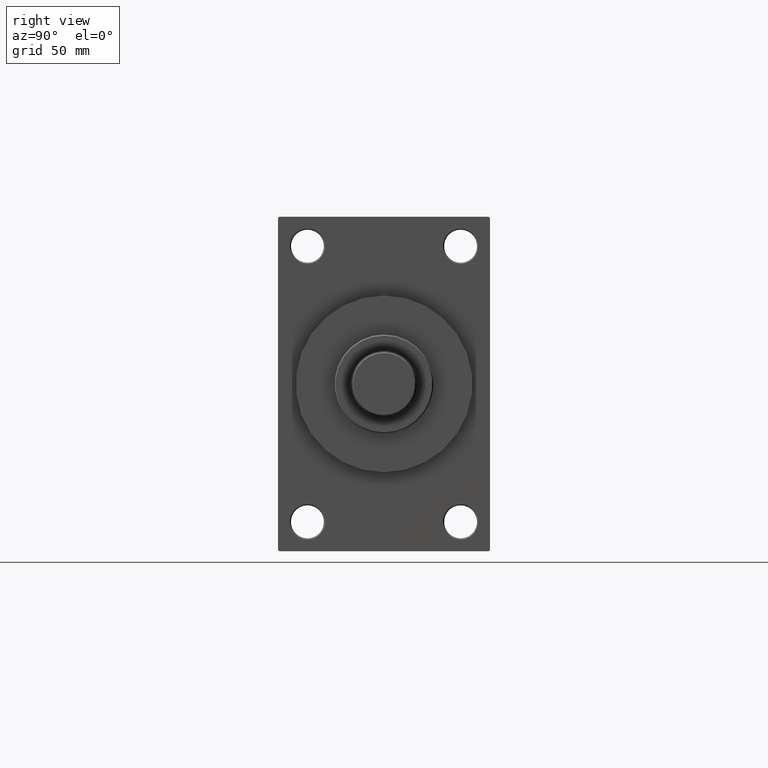
[diagram: clean part render]
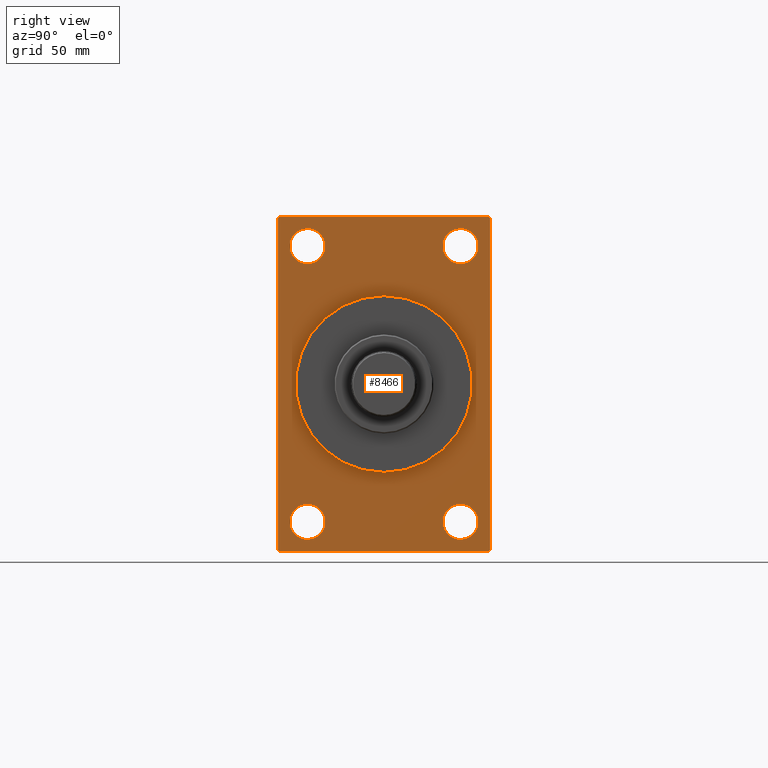
[diagram: same view with one face highlighted and labeled with its STEP entity id]
A machine part, right view. The second image highlights one B-rep face of the part: STEP entity #8466.
In plain terms, the highlighted planar face has unit normal (-1, 0, 0).
Its self-contained STEP definition (entity closure, byte-faithful):
#698 = DIRECTION ( 'NONE',  ( 0.000000000000000000, 0.000000000000000000, 1.000000000000000000 ) ) ;
#721 = CARTESIAN_POINT ( 'NONE',  ( 169.9999999999999716, 44.50000000000000000, 71.00000000000000000 ) ) ;
#724 = EDGE_CURVE ( 'NONE', #23337, #26049, #18722, .T. ) ;
#1033 = DIRECTION ( 'NONE',  ( 0.000000000000000000, 0.000000000000000000, -1.000000000000000000 ) ) ;
#1061 = EDGE_CURVE ( 'NONE', #9287, #33714, #28244, .T. ) ;
#1520 = VERTEX_POINT ( 'NONE', #8630 ) ;
#1823 = DIRECTION ( 'NONE',  ( 0.000000000000000000, 0.000000000000000000, 1.000000000000000000 ) ) ;
#1904 = FACE_OUTER_BOUND ( 'NONE', #9226, .T. ) ;
#2166 = ORIENTED_EDGE ( 'NONE', *, *, #1061, .T. ) ;
#2529 = ORIENTED_EDGE ( 'NONE', *, *, #30286, .F. ) ;
#2673 = CARTESIAN_POINT ( 'NONE',  ( 169.9999999999999716, -45.00000000000000000, 70.49999999999997158 ) ) ;
#2884 = DIRECTION ( 'NONE',  ( 1.000000000000000000, 0.000000000000000000, 0.000000000000000000 ) ) ;
#3678 = EDGE_CURVE ( 'NONE', #29663, #18079, #32080, .T. ) ;
#4198 = ORIENTED_EDGE ( 'NONE', *, *, #3678, .F. ) ;
#4461 = ORIENTED_EDGE ( 'NONE', *, *, #26153, .T. ) ;
#5054 = FACE_BOUND ( 'NONE', #37227, .T. ) ;
#5486 = AXIS2_PLACEMENT_3D ( 'NONE', #33368, #10960, #33132 ) ;
#5641 = ORIENTED_EDGE ( 'NONE', *, *, #18624, .T. ) ;
#5777 = VERTEX_POINT ( 'NONE', #20617 ) ;
#5991 = AXIS2_PLACEMENT_3D ( 'NONE', #10368, #2884, #28681 ) ;
#6076 = CARTESIAN_POINT ( 'NONE',  ( 169.9999999999999716, 32.49999999999998579, 51.00000000000001421 ) ) ;
#6218 = CARTESIAN_POINT ( 'NONE',  ( 169.9999999999999716, -32.50000000000001421, -58.49999999999998579 ) ) ;
#6456 = DIRECTION ( 'NONE',  ( 0.000000000000000000, 0.000000000000000000, 1.000000000000000000 ) ) ;
#6475 = CIRCLE ( 'NONE', #20376, 7.500000000000007105 ) ;
#6498 = ORIENTED_EDGE ( 'NONE', *, *, #21229, .T. ) ;
#7703 = CARTESIAN_POINT ( 'NONE',  ( 169.9999999999999716, 0.000000000000000000, 0.000000000000000000 ) ) ;
#7939 = CIRCLE ( 'NONE', #14869, 7.499999999999992895 ) ;
#8384 = CARTESIAN_POINT ( 'NONE',  ( 169.9999999999999716, 32.49999999999998579, 66.00000000000000000 ) ) ;
#8466 = ADVANCED_FACE ( 'NONE', ( #31071, #9371, #5054, #24087, #12292, #1904 ), #31544, .F. ) ;
#8630 = CARTESIAN_POINT ( 'NONE',  ( 169.9999999999999716, -32.50000000000001421, -65.99999999999997158 ) ) ;
#8816 = VERTEX_POINT ( 'NONE', #8384 ) ;
#9226 = EDGE_LOOP ( 'NONE', ( #22652, #40382, #4198, #29262, #41292, #17632, #6498, #2166 ) ) ;
#9287 = VERTEX_POINT ( 'NONE', #32386 ) ;
#9371 = FACE_BOUND ( 'NONE', #16220, .T. ) ;
#9567 = ORIENTED_EDGE ( 'NONE', *, *, #44013, .T. ) ;
#10368 = CARTESIAN_POINT ( 'NONE',  ( 169.9999999999999716, 0.000000000000000000, 0.000000000000000000 ) ) ;
#10960 = DIRECTION ( 'NONE',  ( -1.000000000000000000, -0.000000000000000000, -0.000000000000000000 ) ) ;
#11166 = CARTESIAN_POINT ( 'NONE',  ( 169.9999999999999716, 45.00000000000000000, 71.00000000000000000 ) ) ;
#11249 = CARTESIAN_POINT ( 'NONE',  ( 169.9999999999999716, 4.592425496802575156E-15, -37.50000000000000711 ) ) ;
#11980 = DIRECTION ( 'NONE',  ( -1.000000000000000000, -0.000000000000000000, -0.000000000000000000 ) ) ;
#12292 = FACE_BOUND ( 'NONE', #13541, .T. ) ;
#12658 = VECTOR ( 'NONE', #38460, 1000.000000000000000 ) ;
#13507 = CARTESIAN_POINT ( 'NONE',  ( 169.9999999999999716, -32.50000000000001421, 58.50000000000001421 ) ) ;
#13541 = EDGE_LOOP ( 'NONE', ( #2529, #29137 ) ) ;
#13862 = VERTEX_POINT ( 'NONE', #43941 ) ;
#14226 = DIRECTION ( 'NONE',  ( 0.000000000000000000, 0.000000000000000000, 1.000000000000000000 ) ) ;
#14477 = DIRECTION ( 'NONE',  ( 0.000000000000000000, 0.000000000000000000, -1.000000000000000000 ) ) ;
#14832 = AXIS2_PLACEMENT_3D ( 'NONE', #19469, #11980, #1823 ) ;
#14869 = AXIS2_PLACEMENT_3D ( 'NONE', #25074, #39769, #15440 ) ;
#14948 = CARTESIAN_POINT ( 'NONE',  ( 169.9999999999999716, 32.49999999999998579, -58.49999999999998579 ) ) ;
#15440 = DIRECTION ( 'NONE',  ( 0.000000000000000000, 0.000000000000000000, 1.000000000000000000 ) ) ;
#15464 = EDGE_CURVE ( 'NONE', #1520, #5777, #44053, .T. ) ;
#15898 = ORIENTED_EDGE ( 'NONE', *, *, #45841, .T. ) ;
#16220 = EDGE_LOOP ( 'NONE', ( #37989, #4461 ) ) ;
#17400 = CARTESIAN_POINT ( 'NONE',  ( 169.9999999999999716, 45.00000000000000000, -71.00000000000000000 ) ) ;
#17405 = DIRECTION ( 'NONE',  ( -0.000000000000000000, -0.7071067811865474617, -0.7071067811865474617 ) ) ;
#17617 = VECTOR ( 'NONE', #28239, 1000.000000000000000 ) ;
#17632 = ORIENTED_EDGE ( 'NONE', *, *, #724, .T. ) ;
#18079 = VERTEX_POINT ( 'NONE', #45377 ) ;
#18624 = EDGE_CURVE ( 'NONE', #8816, #43492, #30311, .T. ) ;
#18722 = LINE ( 'NONE', #33636, #26030 ) ;
#19310 = CARTESIAN_POINT ( 'NONE',  ( 169.9999999999999716, -32.50000000000001421, -58.49999999999998579 ) ) ;
#19454 = VERTEX_POINT ( 'NONE', #38163 ) ;
#19469 = CARTESIAN_POINT ( 'NONE',  ( 169.9999999999999716, 32.49999999999998579, -58.49999999999998579 ) ) ;
#19668 = ORIENTED_EDGE ( 'NONE', *, *, #38671, .T. ) ;
#19775 = DIRECTION ( 'NONE',  ( -1.000000000000000000, 0.000000000000000000, -0.000000000000000000 ) ) ;
#19901 = VECTOR ( 'NONE', #1033, 1000.000000000000000 ) ;
#20144 = CARTESIAN_POINT ( 'NONE',  ( 169.9999999999999716, -32.50000000000001421, 51.00000000000001421 ) ) ;
#20260 = EDGE_LOOP ( 'NONE', ( #15898, #5641 ) ) ;
#20376 = AXIS2_PLACEMENT_3D ( 'NONE', #14948, #22412, #698 ) ;
#20617 = CARTESIAN_POINT ( 'NONE',  ( 169.9999999999999716, -32.50000000000001421, -50.99999999999997868 ) ) ;
#20872 = EDGE_CURVE ( 'NONE', #21257, #30416, #6475, .T. ) ;
#21108 = CARTESIAN_POINT ( 'NONE',  ( 169.9999999999999716, -32.50000000000001421, 66.00000000000001421 ) ) ;
#21159 = VECTOR ( 'NONE', #45361, 1000.000000000000114 ) ;
#21229 = EDGE_CURVE ( 'NONE', #26049, #9287, #23760, .T. ) ;
#21257 = VERTEX_POINT ( 'NONE', #31213 ) ;
#21421 = CARTESIAN_POINT ( 'NONE',  ( 169.9999999999999716, 32.49999999999998579, 58.50000000000000711 ) ) ;
#22412 = DIRECTION ( 'NONE',  ( -1.000000000000000000, -0.000000000000000000, -0.000000000000000000 ) ) ;
#22652 = ORIENTED_EDGE ( 'NONE', *, *, #42357, .T. ) ;
#23207 = CIRCLE ( 'NONE', #5486, 7.500000000000000000 ) ;
#23337 = VERTEX_POINT ( 'NONE', #27051 ) ;
#23659 = LINE ( 'NONE', #41511, #21159 ) ;
#23760 = LINE ( 'NONE', #26906, #12658 ) ;
#24087 = FACE_BOUND ( 'NONE', #20260, .T. ) ;
#24827 = EDGE_CURVE ( 'NONE', #29663, #13862, #23659, .T. ) ;
#25074 = CARTESIAN_POINT ( 'NONE',  ( 169.9999999999999716, 32.49999999999998579, 58.50000000000000711 ) ) ;
#25276 = DIRECTION ( 'NONE',  ( -1.000000000000000000, -0.000000000000000000, -0.000000000000000000 ) ) ;
#25282 = DIRECTION ( 'NONE',  ( -1.000000000000000000, -0.000000000000000000, -0.000000000000000000 ) ) ;
#25945 = ORIENTED_EDGE ( 'NONE', *, *, #45408, .T. ) ;
#25968 = LINE ( 'NONE', #37301, #46263 ) ;
#26030 = VECTOR ( 'NONE', #29773, 1000.000000000000114 ) ;
#26049 = VERTEX_POINT ( 'NONE', #721 ) ;
#26153 = EDGE_CURVE ( 'NONE', #5777, #1520, #34468, .T. ) ;
#26906 = CARTESIAN_POINT ( 'NONE',  ( 169.9999999999999716, 45.00000000000000000, 71.00000000000000000 ) ) ;
#27051 = CARTESIAN_POINT ( 'NONE',  ( 169.9999999999999716, 45.00000000000000000, 70.50000000000000000 ) ) ;
#27088 = EDGE_CURVE ( 'NONE', #23337, #13862, #41288, .T. ) ;
#27238 = CARTESIAN_POINT ( 'NONE',  ( 169.9999999999999716, 0.000000000000000000, 0.000000000000000000 ) ) ;
#27548 = CARTESIAN_POINT ( 'NONE',  ( 169.9999999999999716, 44.49999999999997158, -71.00000000000000000 ) ) ;
#27650 = ORIENTED_EDGE ( 'NONE', *, *, #20872, .T. ) ;
#28239 = DIRECTION ( 'NONE',  ( 0.000000000000000000, -1.000000000000000000, 0.000000000000000000 ) ) ;
#28244 = LINE ( 'NONE', #43902, #39087 ) ;
#28303 = CARTESIAN_POINT ( 'NONE',  ( 169.9999999999999716, -45.00000000000000000, 71.00000000000000000 ) ) ;
#28336 = AXIS2_PLACEMENT_3D ( 'NONE', #7703, #36163, #14477 ) ;
#28681 = DIRECTION ( 'NONE',  ( 0.000000000000000000, 0.000000000000000000, -1.000000000000000000 ) ) ;
#29137 = ORIENTED_EDGE ( 'NONE', *, *, #30288, .F. ) ;
#29256 = LINE ( 'NONE', #28303, #33328 ) ;
#29262 = ORIENTED_EDGE ( 'NONE', *, *, #24827, .T. ) ;
#29663 = VERTEX_POINT ( 'NONE', #27548 ) ;
#29773 = DIRECTION ( 'NONE',  ( 0.000000000000000000, -0.7071067811865474617, 0.7071067811865474617 ) ) ;
#30285 = DIRECTION ( 'NONE',  ( 0.000000000000000000, 0.7071067811865474617, -0.7071067811865474617 ) ) ;
#30286 = EDGE_CURVE ( 'NONE', #19454, #43014, #32182, .T. ) ;
#30288 = EDGE_CURVE ( 'NONE', #43014, #19454, #41432, .T. ) ;
#30311 = CIRCLE ( 'NONE', #31057, 7.499999999999992895 ) ;
#30416 = VERTEX_POINT ( 'NONE', #37608 ) ;
#30751 = AXIS2_PLACEMENT_3D ( 'NONE', #27238, #19775, #46015 ) ;
#31057 = AXIS2_PLACEMENT_3D ( 'NONE', #21421, #25282, #39990 ) ;
#31071 = FACE_BOUND ( 'NONE', #46798, .T. ) ;
#31213 = CARTESIAN_POINT ( 'NONE',  ( 169.9999999999999716, 32.49999999999998579, -50.99999999999997868 ) ) ;
#31544 = PLANE ( 'NONE',  #30751 ) ;
#32080 = LINE ( 'NONE', #17400, #17617 ) ;
#32182 = CIRCLE ( 'NONE', #28336, 37.50000000000000711 ) ;
#32386 = CARTESIAN_POINT ( 'NONE',  ( 169.9999999999999716, -44.49999999999994316, 71.00000000000000000 ) ) ;
#33132 = DIRECTION ( 'NONE',  ( 0.000000000000000000, 0.000000000000000000, 1.000000000000000000 ) ) ;
#33328 = VECTOR ( 'NONE', #36511, 1000.000000000000000 ) ;
#33368 = CARTESIAN_POINT ( 'NONE',  ( 169.9999999999999716, -32.50000000000001421, 58.50000000000001421 ) ) ;
#33636 = CARTESIAN_POINT ( 'NONE',  ( 169.9999999999999716, 44.50000000000000000, 71.00000000000000000 ) ) ;
#33682 = AXIS2_PLACEMENT_3D ( 'NONE', #19310, #37847, #33981 ) ;
#33714 = VERTEX_POINT ( 'NONE', #2673 ) ;
#33981 = DIRECTION ( 'NONE',  ( 0.000000000000000000, 0.000000000000000000, 1.000000000000000000 ) ) ;
#34468 = CIRCLE ( 'NONE', #33682, 7.500000000000007105 ) ;
#35433 = DIRECTION ( 'NONE',  ( -1.000000000000000000, -0.000000000000000000, -0.000000000000000000 ) ) ;
#35596 = CIRCLE ( 'NONE', #14832, 7.500000000000007105 ) ;
#36163 = DIRECTION ( 'NONE',  ( 1.000000000000000000, 0.000000000000000000, 0.000000000000000000 ) ) ;
#36511 = DIRECTION ( 'NONE',  ( 0.000000000000000000, 0.000000000000000000, -1.000000000000000000 ) ) ;
#37041 = VERTEX_POINT ( 'NONE', #37715 ) ;
#37227 = EDGE_LOOP ( 'NONE', ( #25945, #27650 ) ) ;
#37301 = CARTESIAN_POINT ( 'NONE',  ( 169.9999999999999716, -44.50000000000000000, -71.00000000000000000 ) ) ;
#37608 = CARTESIAN_POINT ( 'NONE',  ( 169.9999999999999716, 32.49999999999998579, -65.99999999999997158 ) ) ;
#37715 = CARTESIAN_POINT ( 'NONE',  ( 169.9999999999999716, -45.00000000000000000, -70.50000000000000000 ) ) ;
#37847 = DIRECTION ( 'NONE',  ( -1.000000000000000000, -0.000000000000000000, -0.000000000000000000 ) ) ;
#37989 = ORIENTED_EDGE ( 'NONE', *, *, #15464, .T. ) ;
#38163 = CARTESIAN_POINT ( 'NONE',  ( 169.9999999999999716, 0.000000000000000000, 37.50000000000000711 ) ) ;
#38408 = EDGE_CURVE ( 'NONE', #37041, #18079, #25968, .T. ) ;
#38460 = DIRECTION ( 'NONE',  ( 0.000000000000000000, -1.000000000000000000, 0.000000000000000000 ) ) ;
#38671 = EDGE_CURVE ( 'NONE', #45500, #43057, #23207, .T. ) ;
#39087 = VECTOR ( 'NONE', #17405, 1000.000000000000114 ) ;
#39769 = DIRECTION ( 'NONE',  ( -1.000000000000000000, -0.000000000000000000, -0.000000000000000000 ) ) ;
#39990 = DIRECTION ( 'NONE',  ( 0.000000000000000000, 0.000000000000000000, 1.000000000000000000 ) ) ;
#40382 = ORIENTED_EDGE ( 'NONE', *, *, #38408, .T. ) ;
#41288 = LINE ( 'NONE', #11166, #19901 ) ;
#41292 = ORIENTED_EDGE ( 'NONE', *, *, #27088, .F. ) ;
#41432 = CIRCLE ( 'NONE', #5991, 37.50000000000000711 ) ;
#41511 = CARTESIAN_POINT ( 'NONE',  ( 169.9999999999999716, 45.00000000000000000, -70.49999999999997158 ) ) ;
#42357 = EDGE_CURVE ( 'NONE', #33714, #37041, #29256, .T. ) ;
#43014 = VERTEX_POINT ( 'NONE', #11249 ) ;
#43057 = VERTEX_POINT ( 'NONE', #20144 ) ;
#43492 = VERTEX_POINT ( 'NONE', #6076 ) ;
#43902 = CARTESIAN_POINT ( 'NONE',  ( 169.9999999999999716, -45.00000000000000000, 70.49999999999997158 ) ) ;
#43941 = CARTESIAN_POINT ( 'NONE',  ( 169.9999999999999716, 45.00000000000000000, -70.49999999999997158 ) ) ;
#44013 = EDGE_CURVE ( 'NONE', #43057, #45500, #44043, .T. ) ;
#44043 = CIRCLE ( 'NONE', #46335, 7.500000000000000000 ) ;
#44053 = CIRCLE ( 'NONE', #45595, 7.500000000000007105 ) ;
#45361 = DIRECTION ( 'NONE',  ( -0.000000000000000000, 0.7071067811865474617, 0.7071067811865474617 ) ) ;
#45377 = CARTESIAN_POINT ( 'NONE',  ( 169.9999999999999716, -44.49999999999997158, -71.00000000000000000 ) ) ;
#45408 = EDGE_CURVE ( 'NONE', #30416, #21257, #35596, .T. ) ;
#45500 = VERTEX_POINT ( 'NONE', #21108 ) ;
#45595 = AXIS2_PLACEMENT_3D ( 'NONE', #6218, #25276, #6456 ) ;
#45841 = EDGE_CURVE ( 'NONE', #43492, #8816, #7939, .T. ) ;
#46015 = DIRECTION ( 'NONE',  ( -0.000000000000000000, 0.000000000000000000, 1.000000000000000000 ) ) ;
#46263 = VECTOR ( 'NONE', #30285, 1000.000000000000114 ) ;
#46335 = AXIS2_PLACEMENT_3D ( 'NONE', #13507, #35433, #14226 ) ;
#46798 = EDGE_LOOP ( 'NONE', ( #9567, #19668 ) ) ;